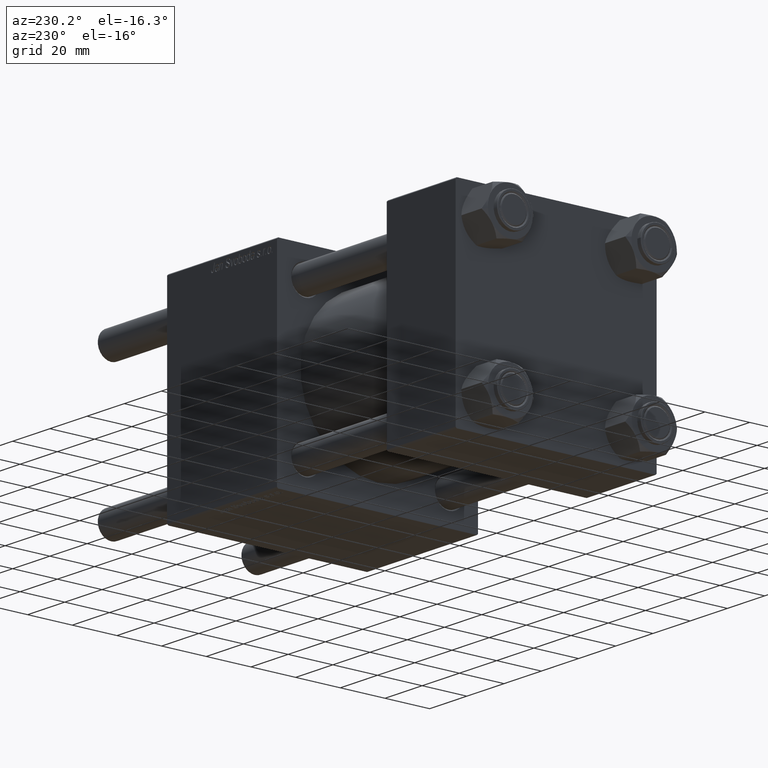
[diagram: clean part render]
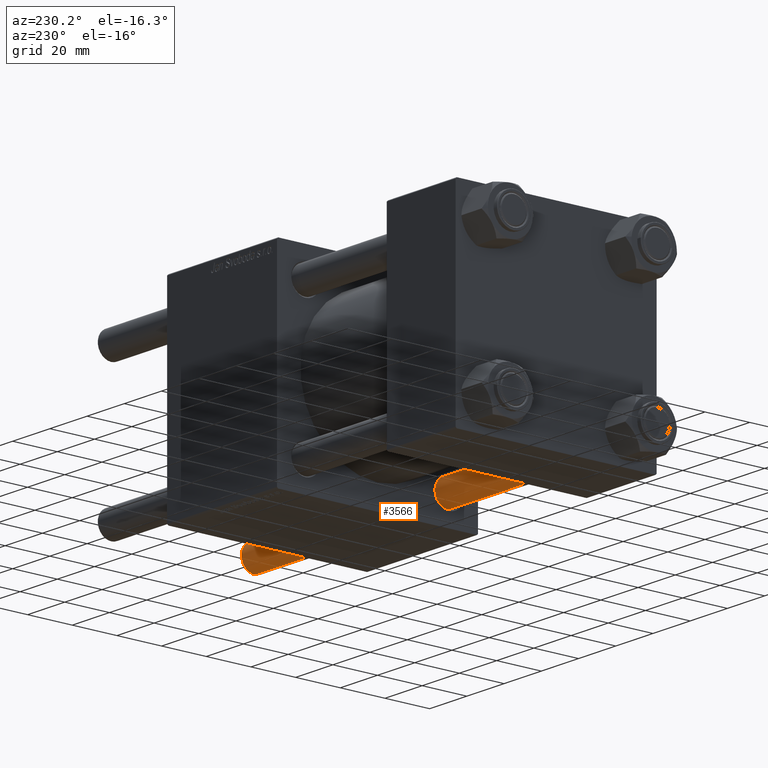
[diagram: same view with one face highlighted and labeled with its STEP entity id]
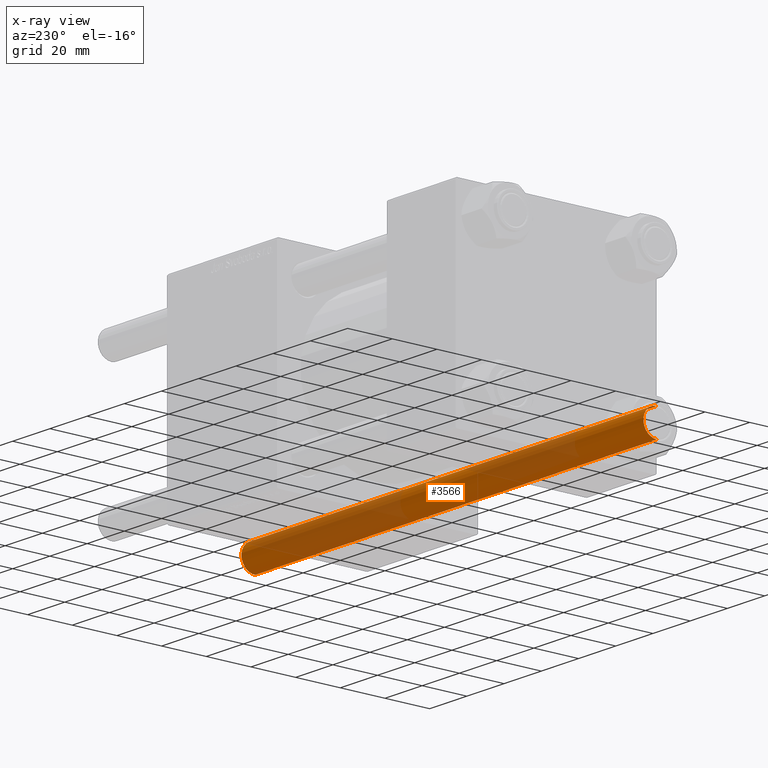
[diagram: x-ray of the same camera — body ghosted, the highlighted face saturated]
A machine part, auxiliary view. The second image highlights one B-rep face of the part: STEP entity #3566.
The next image is the same camera in x-ray: the body ghosted, the highlighted face saturated — about 47% of this face is hidden behind the body in this view.
In plain terms, the highlighted cylindrical surface (edge-blend (fillet) strip) has radius 6 mm, axis along (1, 0, 0).
Its self-contained STEP definition (entity closure, byte-faithful):
#3566 = ADVANCED_FACE ( 'NONE', ( #28168 ), #19545, .T. ) ;
#6364 = CARTESIAN_POINT ( 'NONE',  ( 0.000000000000000000, 0.000000000000000000, 217.0000000000000000 ) ) ;
#7868 = LINE ( 'NONE', #29949, #14703 ) ;
#9186 = EDGE_LOOP ( 'NONE', ( #12604, #23642, #19433, #21027 ) ) ;
#10497 = EDGE_CURVE ( 'NONE', #24063, #35571, #44522, .T. ) ;
#12604 = ORIENTED_EDGE ( 'NONE', *, *, #10497, .F. ) ;
#14574 = VERTEX_POINT ( 'NONE', #45994 ) ;
#14703 = VECTOR ( 'NONE', #47428, 1000.000000000000000 ) ;
#15889 = EDGE_CURVE ( 'NONE', #24063, #26815, #16265, .T. ) ;
#16265 = CIRCLE ( 'NONE', #26324, 6.000000000000000888 ) ;
#16472 = EDGE_CURVE ( 'NONE', #14574, #35571, #56529, .T. ) ;
#18424 = DIRECTION ( 'NONE',  ( -1.000000000000000000, 0.000000000000000000, 0.000000000000000000 ) ) ;
#18754 = AXIS2_PLACEMENT_3D ( 'NONE', #6364, #45649, #18424 ) ;
#19310 = CARTESIAN_POINT ( 'NONE',  ( 6.000000000000000888, 7.347880794884120722E-16, 0.4999999999999449329 ) ) ;
#19433 = ORIENTED_EDGE ( 'NONE', *, *, #28385, .T. ) ;
#19545 = CYLINDRICAL_SURFACE ( 'NONE', #18754, 6.000000000000000888 ) ;
#20057 = DIRECTION ( 'NONE',  ( -0.000000000000000000, -0.000000000000000000, 1.000000000000000000 ) ) ;
#21027 = ORIENTED_EDGE ( 'NONE', *, *, #16472, .T. ) ;
#22435 = CARTESIAN_POINT ( 'NONE',  ( 6.000000000000000888, 7.347880794884120722E-16, 217.0000000000000000 ) ) ;
#23642 = ORIENTED_EDGE ( 'NONE', *, *, #15889, .T. ) ;
#24063 = VERTEX_POINT ( 'NONE', #29472 ) ;
#24924 = CARTESIAN_POINT ( 'NONE',  ( 0.000000000000000000, 0.000000000000000000, 0.4999999999999449329 ) ) ;
#26324 = AXIS2_PLACEMENT_3D ( 'NONE', #29523, #56672, #34859 ) ;
#26815 = VERTEX_POINT ( 'NONE', #42905 ) ;
#27235 = AXIS2_PLACEMENT_3D ( 'NONE', #24924, #20057, #46140 ) ;
#28168 = FACE_OUTER_BOUND ( 'NONE', #9186, .T. ) ;
#28385 = EDGE_CURVE ( 'NONE', #26815, #14574, #7868, .T. ) ;
#29472 = CARTESIAN_POINT ( 'NONE',  ( 6.000000000000000888, 7.347880794884120722E-16, 216.4999999999999716 ) ) ;
#29523 = CARTESIAN_POINT ( 'NONE',  ( 0.000000000000000000, 0.000000000000000000, 216.4999999999999716 ) ) ;
#29949 = CARTESIAN_POINT ( 'NONE',  ( -6.000000000000000888, 0.000000000000000000, 217.0000000000000000 ) ) ;
#34859 = DIRECTION ( 'NONE',  ( 1.000000000000000000, 0.000000000000000000, 0.000000000000000000 ) ) ;
#35571 = VERTEX_POINT ( 'NONE', #19310 ) ;
#39941 = DIRECTION ( 'NONE',  ( -0.000000000000000000, -0.000000000000000000, -1.000000000000000000 ) ) ;
#42905 = CARTESIAN_POINT ( 'NONE',  ( -6.000000000000000888, 0.000000000000000000, 216.4999999999999716 ) ) ;
#44522 = LINE ( 'NONE', #22435, #52682 ) ;
#45649 = DIRECTION ( 'NONE',  ( -0.000000000000000000, -0.000000000000000000, -1.000000000000000000 ) ) ;
#45994 = CARTESIAN_POINT ( 'NONE',  ( -6.000000000000000888, 0.000000000000000000, 0.4999999999999449329 ) ) ;
#46140 = DIRECTION ( 'NONE',  ( 1.000000000000000000, 0.000000000000000000, 0.000000000000000000 ) ) ;
#47428 = DIRECTION ( 'NONE',  ( -0.000000000000000000, -0.000000000000000000, -1.000000000000000000 ) ) ;
#52682 = VECTOR ( 'NONE', #39941, 1000.000000000000000 ) ;
#56529 = CIRCLE ( 'NONE', #27235, 6.000000000000000888 ) ;
#56672 = DIRECTION ( 'NONE',  ( 0.000000000000000000, 0.000000000000000000, -1.000000000000000000 ) ) ;